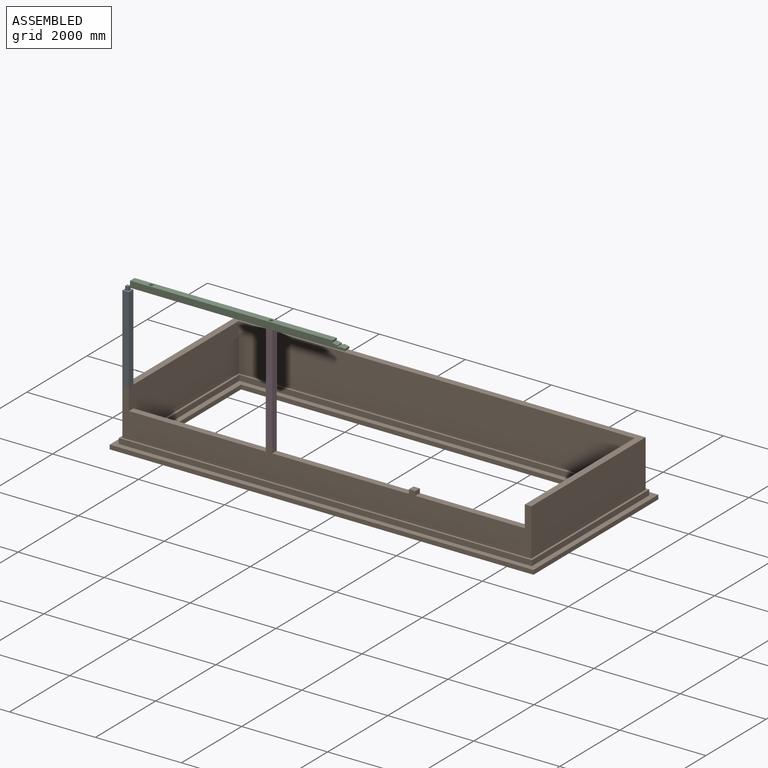
[diagram: assembled view]
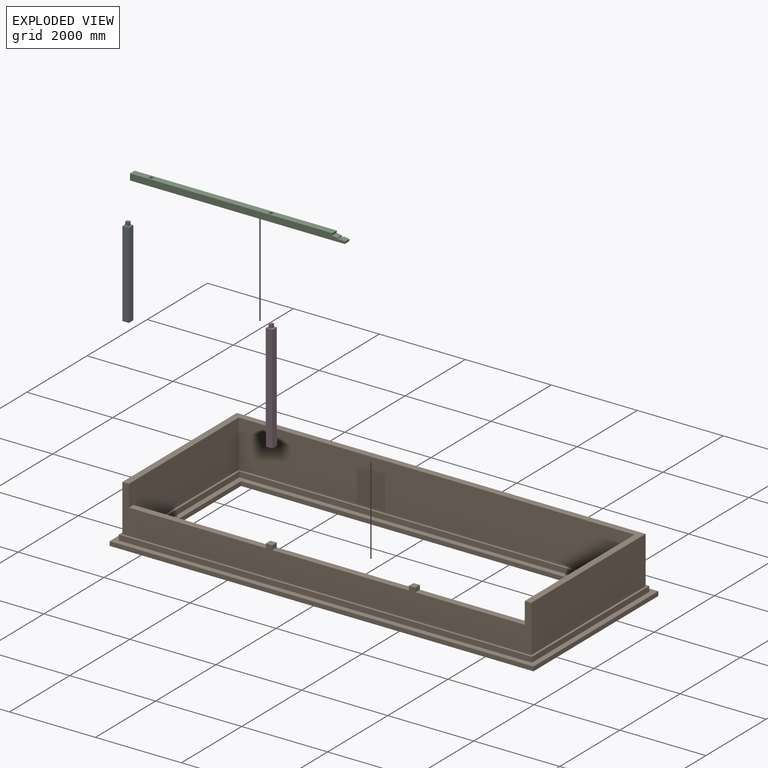
[diagram: exploded view]
GUIDED TOUR — MATED ASSEMBLY (Onshape document bc4bcafc574730fd228ee07c, AutoMate assembly bc4bcafc574730fd228ee07c_49fd6c041df78540ec7fcb2f_7df78c0bd3df533aad97ffa0_default)

This assembly has 4 components, labeled P0..P3 below (a component is one placed occurrence of a part; the same part can appear more than once), held together by 9 mates. A mate is a constraint between two components; its type names the relative motion it leaves free:
  PLANAR — leaves sliding in the plane through the listed point (normal = the listed direction) and rotation about that normal free.
Axis/direction vectors are unit vectors and 'through' points are millimeter coordinates, both in the assembly's world frame.

MATES
  1. PLANAR "Planar 1": P1 <-> P3, direction (0.000, 0.000, 1.000) through (-936.37, 1178.79, 3898.08) mm
  2. PLANAR "Planar 2": P1 <-> P3, direction (0.000, -1.000, 0.000) through (-861.37, 1103.79, 3798.08) mm
  3. PLANAR "Planar 7": P2 <-> P3, direction (0.000, 0.000, -1.000) through (-1661.66, 1178.79, 6398.08) mm
  4. PLANAR "Planar 8": P3 <-> P2, direction (1.000, 0.000, 0.000) through (-898.87, 1178.79, 6443.08) mm
  5. PLANAR "Planar 4": P1 <-> P0, direction (0.000, 0.000, 1.000) through (408.63, 4003.68, 4298.08) mm
  6. PLANAR "Planar 3": P3 <-> P1, direction (1.000, 0.000, 0.000) through (-861.37, 1178.79, 5148.08) mm
  7. PLANAR "Planar 9": P2 <-> P3, direction (0.000, -1.000, 0.000) through (-1746.35, 1103.79, 6472.02) mm
  8. PLANAR "Planar 5": P1 <-> P0, direction (0.000, -1.000, 0.000) through (-2603.87, 1103.79, 3798.08) mm
  9. PLANAR "Planar 6": P1 <-> P0, direction (-1.000, 0.000, 0.000) through (-4346.37, 1103.79, 4298.08) mm

ASSEMBLY ORDER
  1. P3 — the base component [order verified]
  2. P0 [order verified]
  3. P1 [order verified]
  4. P2 [order verified]
Order-tag legend:
  [order verified] — this step's position reverses a verified removal order: the component was checked to insert without passing through the ones already placed.

Of the 4 components, 4 carry the full construction recipe — the FeatureScript program that regenerates the part's solid from scratch; the rest are supplied as boundary geometry only.
Each toured component is shown spotlighted twice — in the assembled view, then in the exploded view, where a leader line traces a displaced component back to its assembled socket (saturated green if recipe-attached, orange if geometry-only; every other component desaturated gray) — followed by its recipe or geometry summary and the mates that hold it.
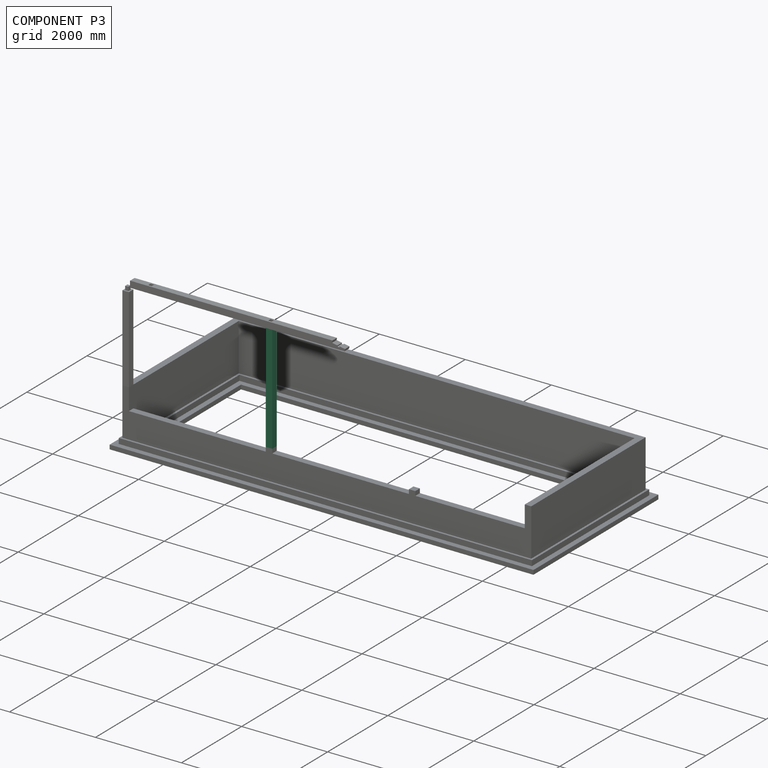
[diagram: component P3 — assembled]
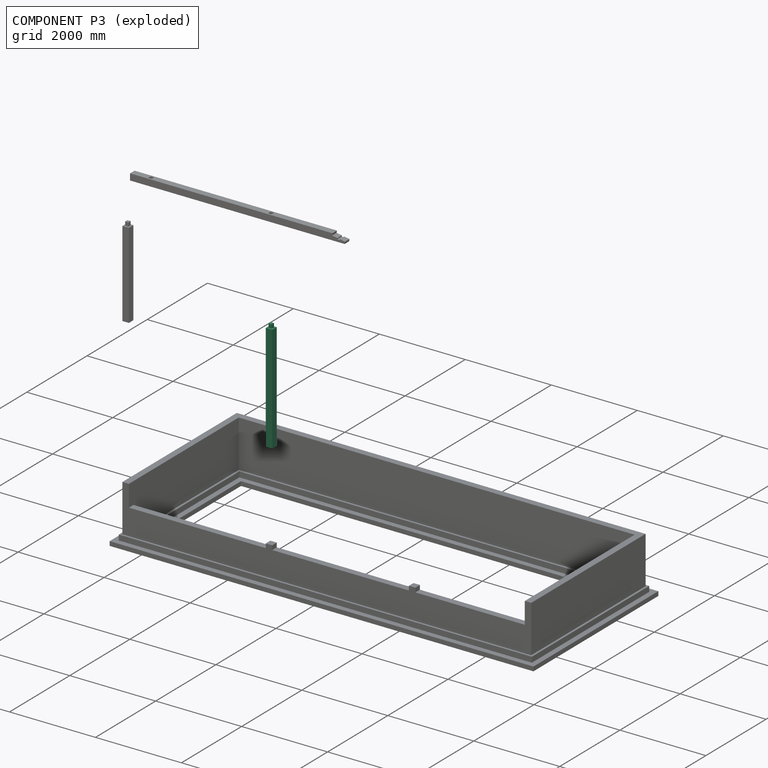
[diagram: component P3 — exploded]
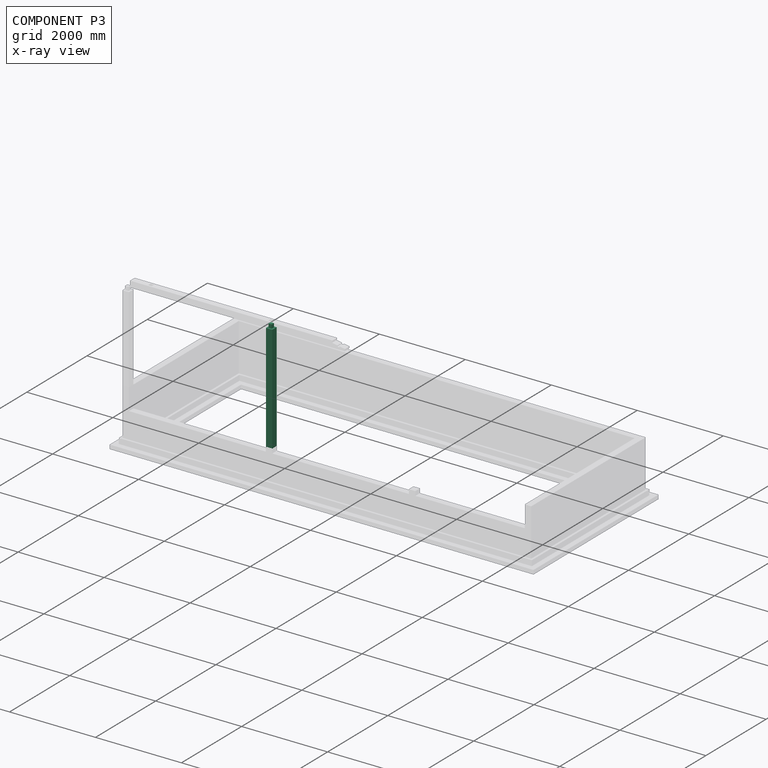
[diagram: component P3 — x-ray view]
COMPONENT P3 — recipe-attached (CADFS 00574488, mesh-verified: the recipe's output STEP matches this component's geometry to below the mesh-comparison resolution (tessellation chordal tolerance ~3.9 mm)).
Held by: PLANAR mate "Planar 1" to P1; PLANAR mate "Planar 2" to P1; PLANAR mate "Planar 7" to P2; PLANAR mate "Planar 8" to P2; PLANAR mate "Planar 3" to P1; PLANAR mate "Planar 9" to P2.
Construction recipe (FeatureScript — the CAD program that rebuilds this solid; sketch coordinates are in the units given by the * unit suffixes, e.g. mm):

FeatureScript 1511;
import(path : "onshape/std/geometry.fs", version : "1511.0");
import(path : "onshape/std/common.fs", version : "1511.0");
const mm = millimeter;
const VERTEX = EntityType.VERTEX;
const EDGE = EntityType.EDGE;
const FACE = EntityType.FACE;
const BODY = EntityType.BODY;
function v(x, y){return vector(x, y);}
function OD(order){return orderDisambiguation(order);}
function OSD(set){return originalSetDisambiguation(set);}
function TD(topology){return topologyDisambiguation(topology);}
function TDD(query){return trueDependencyDisambiguation(query);}
function sQuery(a, b, c) {return sketchEntityQuery(a, b, c);}

annotation { "Feature Type Name" : "Feature", "Feature Type Description" : "" }
export const myFeature = defineFeature(function(context is Context, id is Id, definition is map)
    precondition{}
    {
        {
            var Q0;
            Q0=qCreatedBy(makeId("Top.planeOp"),FACE);
            var sketch = newSketch(context, id + "F0", { "sketchPlane" : qUnion([Q0])});
            skLineSegment(sketch, "E0.bottom", {"start": v(75, 75) * mm, "end": v(-75, 75) * mm});
            skLineSegment(sketch, "E0.top", {"start": v(75, -75) * mm, "end": v(-75, -75) * mm});
            skLineSegment(sketch, "E0.left", {"start": v(75, 75) * mm, "end": v(75, -75) * mm});
            skLineSegment(sketch, "E0.right", {"start": v(-75, 75) * mm, "end": v(-75, -75) * mm});
            skPoint(sketch, "E0.middle", {"position": v(0, 0) * mm});
            skSolve(sketch);
        }
        {
            var Q0;
            Q0=makeQuery(id+"F0.imprint","IMPRINT",FACE,{"disambiguationData":[TD([[makeQuery(id+"F0.imprint","IMPRINT",EDGE,{"derivedFrom":sQuery(id+"F0.wireOp",EDGE,"E0.bottom")}),1.0]])]});
            extrude(context, id + "F1", {"entities" : qUnion([Q0]), "depth" : 2500 * mm, "offsetDistance" : 25 * mm});
        }
        {
            var Q0;
            Q0=makeQuery(id+"F1.opExtrude","CAP_FACE",FACE,{"disambiguationData":[OSD([sQuery(id+"F0.wireOp",EDGE,"E0.bottom"),sQuery(id+"F0.wireOp",EDGE,"E0.top"),sQuery(id+"F0.wireOp",EDGE,"E0.left"),sQuery(id+"F0.wireOp",EDGE,"E0.right")])],"isStart":false});
            var sketch = newSketch(context, id + "F2", { "sketchPlane" : qUnion([Q0])});
            skLineSegment(sketch, "E1.bottom", {"start": v(37.5, 37.5) * mm, "end": v(-37.5, 37.5) * mm});
            skLineSegment(sketch, "E1.top", {"start": v(37.5, -37.5) * mm, "end": v(-37.5, -37.5) * mm});
            skLineSegment(sketch, "E1.left", {"start": v(37.5, 37.5) * mm, "end": v(37.5, -37.5) * mm});
            skLineSegment(sketch, "E1.right", {"start": v(-37.5, 37.5) * mm, "end": v(-37.5, -37.5) * mm});
            skPoint(sketch, "E1.middle", {"position": v(0, 0) * mm});
            skSolve(sketch);
        }
        {
            var Q0;
            Q0=makeQuery(id+"F2.imprint","IMPRINT",FACE,{"disambiguationData":[TD([[makeQuery(id+"F2.imprint","IMPRINT",EDGE,{"derivedFrom":sQuery(id+"F2.wireOp",EDGE,"E1.bottom")}),1.0]])]});
            extrude(context, id + "F3", {"entities" : qUnion([Q0]), "operationType" : NewBodyOperationType.ADD, "depth" : 90 * mm, "offsetDistance" : 25 * mm});
        }
    });
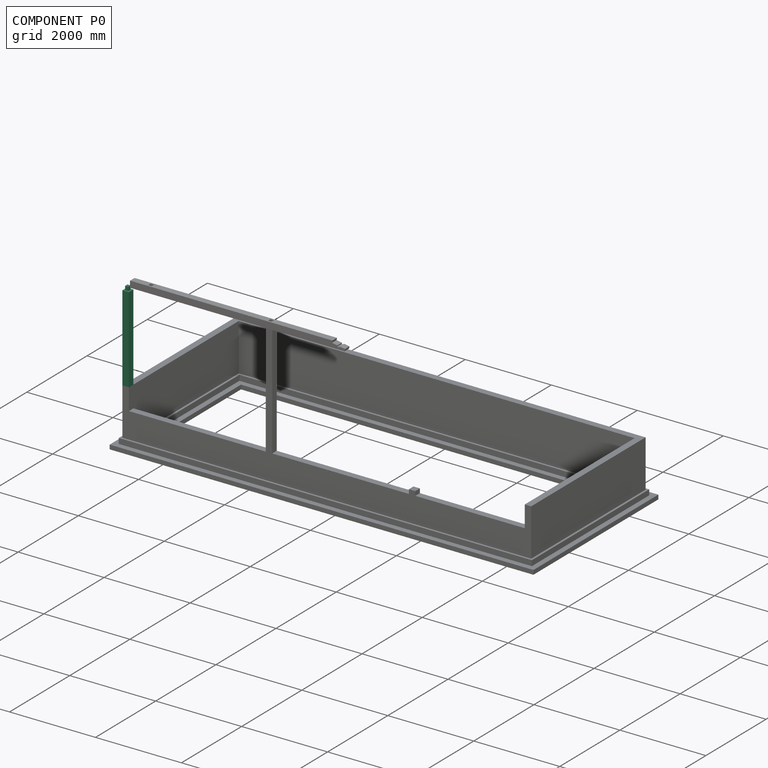
[diagram: component P0 — assembled]
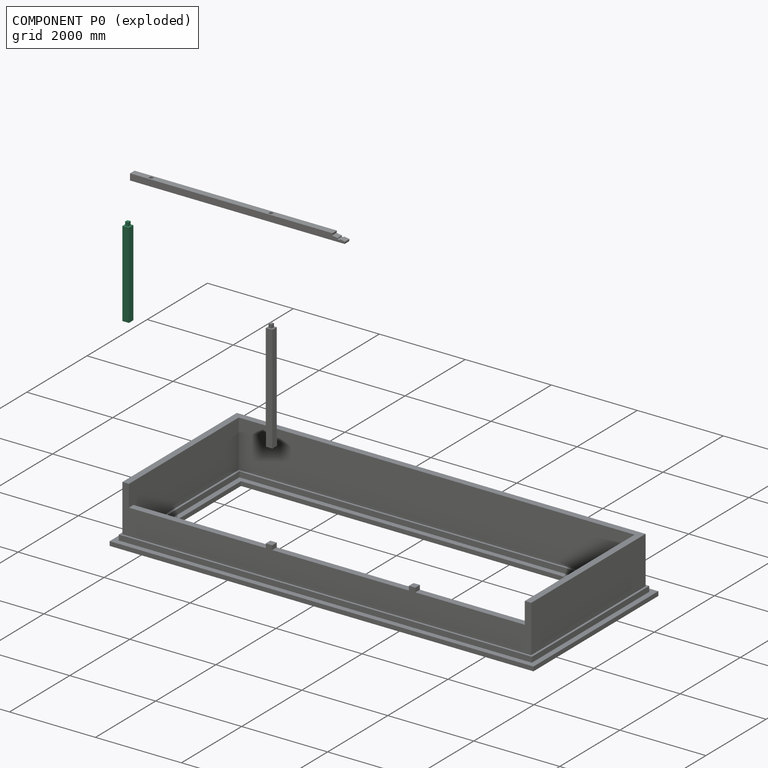
[diagram: component P0 — exploded]
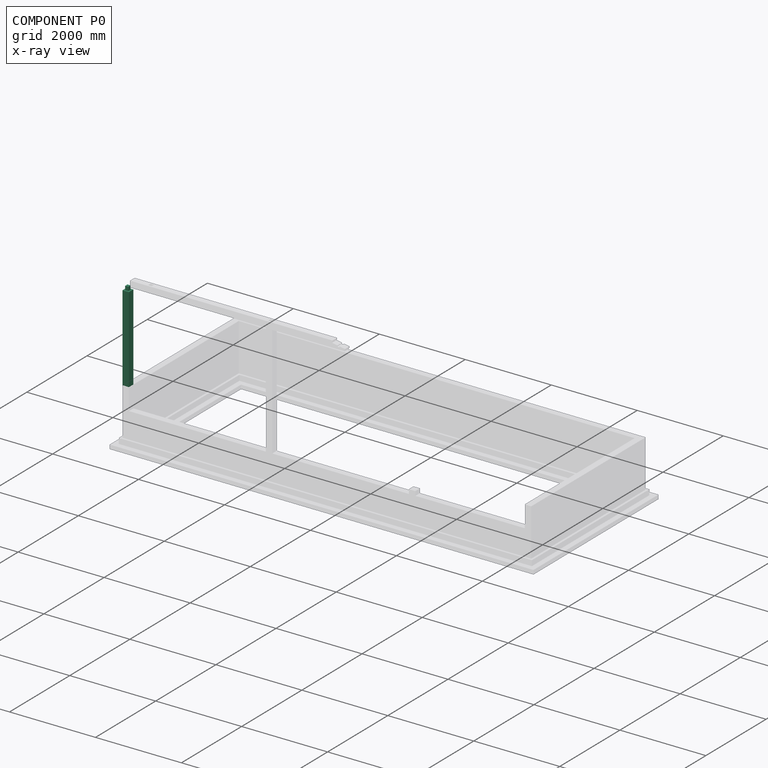
[diagram: component P0 — x-ray view]
COMPONENT P0 — recipe-attached (CADFS 00574489, mesh-verified: the recipe's output STEP matches this component's geometry to below the mesh-comparison resolution (tessellation chordal tolerance ~3.15 mm)).
Held by: PLANAR mate "Planar 4" to P1; PLANAR mate "Planar 5" to P1; PLANAR mate "Planar 6" to P1.
Construction recipe (FeatureScript — the CAD program that rebuilds this solid; sketch coordinates are in the units given by the * unit suffixes, e.g. mm):

FeatureScript 1511;
import(path : "onshape/std/geometry.fs", version : "1511.0");
import(path : "onshape/std/common.fs", version : "1511.0");
const mm = millimeter;
const VERTEX = EntityType.VERTEX;
const EDGE = EntityType.EDGE;
const FACE = EntityType.FACE;
const BODY = EntityType.BODY;
function v(x, y){return vector(x, y);}
function OD(order){return orderDisambiguation(order);}
function OSD(set){return originalSetDisambiguation(set);}
function TD(topology){return topologyDisambiguation(topology);}
function TDD(query){return trueDependencyDisambiguation(query);}
function sQuery(a, b, c) {return sketchEntityQuery(a, b, c);}

annotation { "Feature Type Name" : "Feature", "Feature Type Description" : "" }
export const myFeature = defineFeature(function(context is Context, id is Id, definition is map)
    precondition{}
    {
        {
            var Q0;
            Q0=qCreatedBy(makeId("Top.planeOp"),FACE);
            var sketch = newSketch(context, id + "F0", { "sketchPlane" : qUnion([Q0])});
            skLineSegment(sketch, "E0.bottom", {"start": v(75, 75) * mm, "end": v(-75, 75) * mm});
            skLineSegment(sketch, "E0.top", {"start": v(75, -75) * mm, "end": v(-75, -75) * mm});
            skLineSegment(sketch, "E0.left", {"start": v(75, 75) * mm, "end": v(75, -75) * mm});
            skLineSegment(sketch, "E0.right", {"start": v(-75, 75) * mm, "end": v(-75, -75) * mm});
            skPoint(sketch, "E0.middle", {"position": v(0, 0) * mm});
            skSolve(sketch);
        }
        {
            var Q0;
            Q0=makeQuery(id+"F0.imprint","IMPRINT",FACE,{"disambiguationData":[TD([[makeQuery(id+"F0.imprint","IMPRINT",EDGE,{"derivedFrom":sQuery(id+"F0.wireOp",EDGE,"E0.bottom")}),1.0]])]});
            extrude(context, id + "F1", {"entities" : qUnion([Q0]), "depth" : 2000 * mm, "offsetDistance" : 25 * mm});
        }
        {
            var Q0;
            Q0=makeQuery(id+"F1.opExtrude","CAP_FACE",FACE,{"disambiguationData":[OSD([sQuery(id+"F0.wireOp",EDGE,"E0.bottom"),sQuery(id+"F0.wireOp",EDGE,"E0.top"),sQuery(id+"F0.wireOp",EDGE,"E0.left"),sQuery(id+"F0.wireOp",EDGE,"E0.right")])],"isStart":false});
            var sketch = newSketch(context, id + "F2", { "sketchPlane" : qUnion([Q0])});
            skLineSegment(sketch, "E1.bottom", {"start": v(37.5, 37.5) * mm, "end": v(-37.5, 37.5) * mm});
            skLineSegment(sketch, "E1.top", {"start": v(37.5, -37.5) * mm, "end": v(-37.5, -37.5) * mm});
            skLineSegment(sketch, "E1.left", {"start": v(37.5, 37.5) * mm, "end": v(37.5, -37.5) * mm});
            skLineSegment(sketch, "E1.right", {"start": v(-37.5, 37.5) * mm, "end": v(-37.5, -37.5) * mm});
            skPoint(sketch, "E1.middle", {"position": v(0, 0) * mm});
            skSolve(sketch);
        }
        {
            var Q0;
            Q0=makeQuery(id+"F2.imprint","IMPRINT",FACE,{"disambiguationData":[TD([[makeQuery(id+"F2.imprint","IMPRINT",EDGE,{"derivedFrom":sQuery(id+"F2.wireOp",EDGE,"E1.bottom")}),1.0]])]});
            extrude(context, id + "F3", {"entities" : qUnion([Q0]), "operationType" : NewBodyOperationType.ADD, "depth" : 90 * mm, "offsetDistance" : 25 * mm});
        }
    });
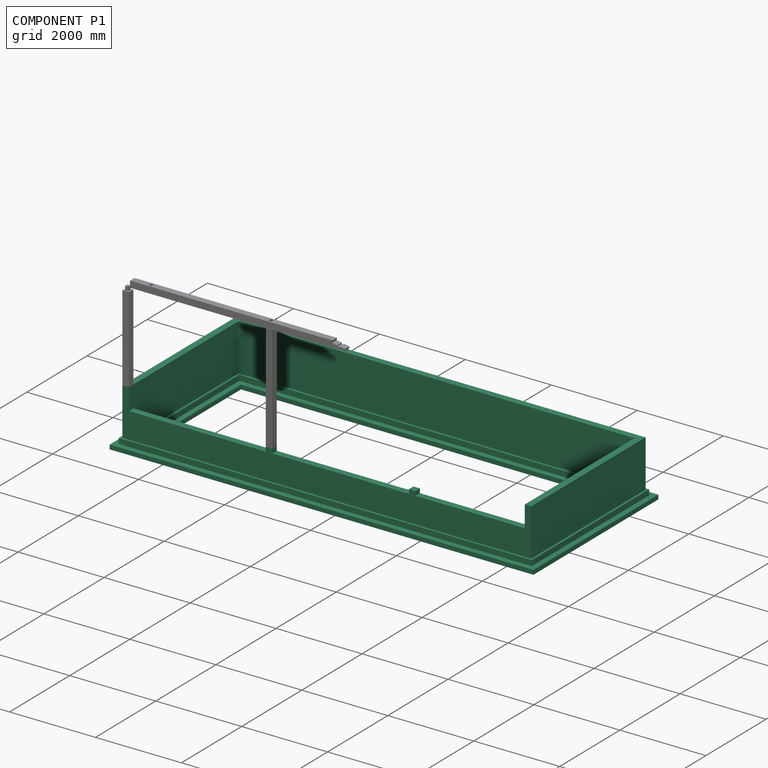
[diagram: component P1 — assembled]
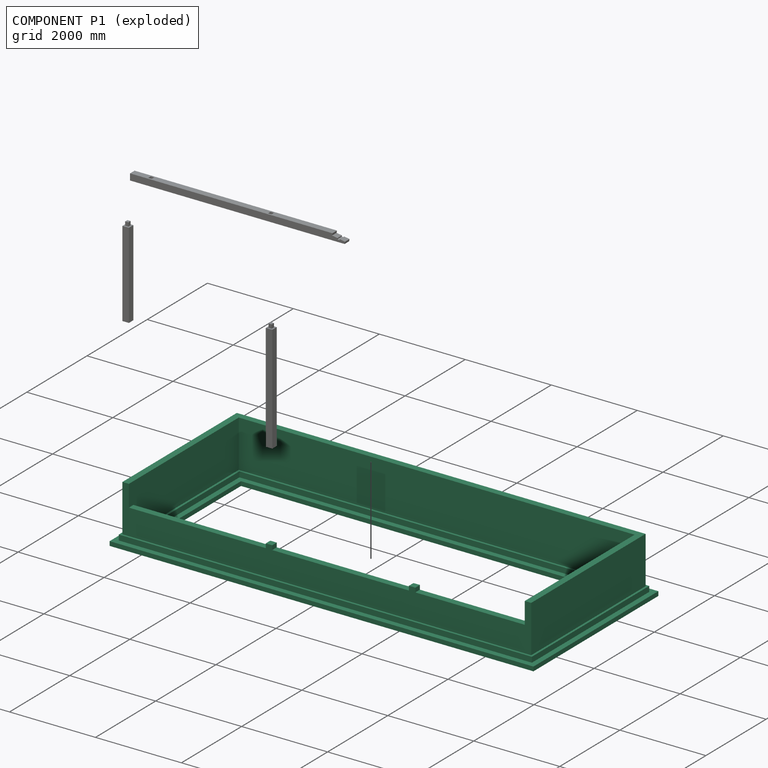
[diagram: component P1 — exploded]
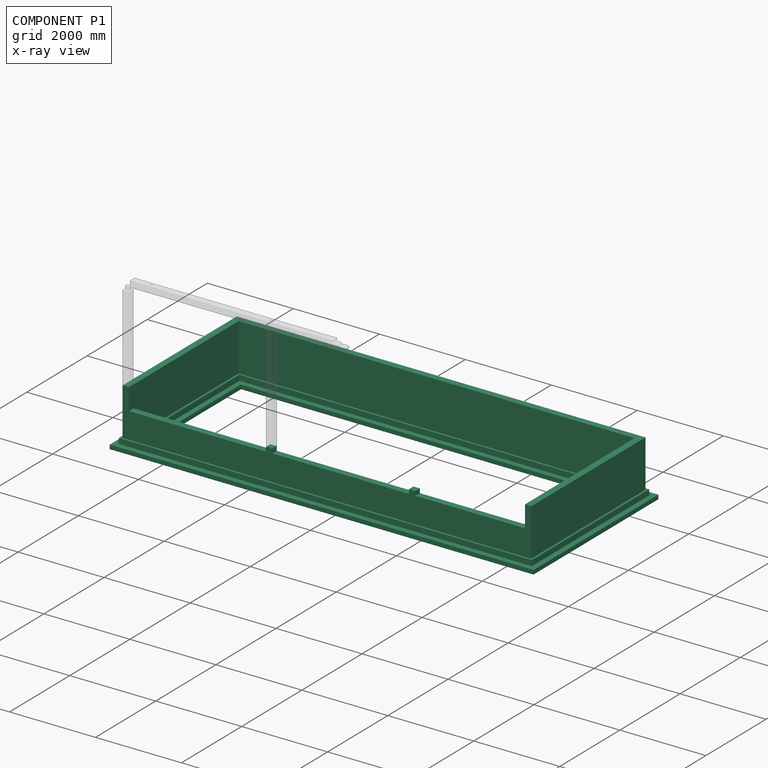
[diagram: component P1 — x-ray view]
COMPONENT P1 — recipe-attached (CADFS 00574487, mesh-verified: the recipe's output STEP matches this component's geometry to below the mesh-comparison resolution (tessellation chordal tolerance ~16.2 mm)).
Held by: PLANAR mate "Planar 1" to P3; PLANAR mate "Planar 2" to P3; PLANAR mate "Planar 4" to P0; PLANAR mate "Planar 3" to P3; PLANAR mate "Planar 5" to P0; PLANAR mate "Planar 6" to P0.
Construction recipe (FeatureScript — the CAD program that rebuilds this solid; sketch coordinates are in the units given by the * unit suffixes, e.g. mm):

FeatureScript 1511;
import(path : "onshape/std/geometry.fs", version : "1511.0");
import(path : "onshape/std/common.fs", version : "1511.0");
const mm = millimeter;
const VERTEX = EntityType.VERTEX;
const EDGE = EntityType.EDGE;
const FACE = EntityType.FACE;
const BODY = EntityType.BODY;
function v(x, y){return vector(x, y);}
function OD(order){return orderDisambiguation(order);}
function OSD(set){return originalSetDisambiguation(set);}
function TD(topology){return topologyDisambiguation(topology);}
function TDD(query){return trueDependencyDisambiguation(query);}
function sQuery(a, b, c) {return sketchEntityQuery(a, b, c);}

annotation { "Feature Type Name" : "Feature", "Feature Type Description" : "" }
export const myFeature = defineFeature(function(context is Context, id is Id, definition is map)
    precondition{}
    {
        {
            var Q0;
            Q0=qCreatedBy(makeId("Top.planeOp"),FACE);
            var sketch = newSketch(context, id + "F0", { "sketchPlane" : qUnion([Q0])});
            skLineSegment(sketch, "E0", {"start": v(-2720, 0) * mm, "end": v(-3220, 0) * mm});
            skLineSegment(sketch, "E1", {"start": v(-3220, 0) * mm, "end": v(-3220, 4150) * mm});
            skLineSegment(sketch, "E2", {"start": v(-3220, 4150) * mm, "end": v(6640, 4150) * mm});
            skLineSegment(sketch, "E3", {"start": v(6640, 4150) * mm, "end": v(6640, 0) * mm});
            skLineSegment(sketch, "E4", {"start": v(6640, 0) * mm, "end": v(6140, 0) * mm});
            skLineSegment(sketch, "E5", {"start": v(6140, 500) * mm, "end": v(6140, 3650) * mm});
            skLineSegment(sketch, "E6", {"start": v(6140, 3650) * mm, "end": v(-2720, 3650) * mm});
            skLineSegment(sketch, "E7", {"start": v(-2720, 3650) * mm, "end": v(-2720, 500) * mm});
            skLineSegment(sketch, "E8", {"start": v(-2720, 0) * mm, "end": v(6140, 0) * mm});
            skLineSegment(sketch, "E9", {"start": v(-2970, 0) * mm, "end": v(-2970, 3900) * mm, "construction": true});
            skLineSegment(sketch, "E10", {"start": v(-2970, 3900) * mm, "end": v(6390, 3900) * mm, "construction": true});
            skLineSegment(sketch, "E11", {"start": v(6390, 0) * mm, "end": v(6390, 3900) * mm, "construction": true});
            skLineSegment(sketch, "E12", {"start": v(-2720, 500) * mm, "end": v(6140, 500) * mm});
            skLineSegment(sketch, "E13", {"start": v(-2970, 250) * mm, "end": v(6390, 250) * mm, "construction": true});
            skSolve(sketch);
        }
        {
            var Q0;
            Q0=makeQuery(id+"F0.imprint","IMPRINT",FACE,{"disambiguationData":[TD([[makeQuery(id+"F0.imprint","IMPRINT",EDGE,{"derivedFrom":sQuery(id+"F0.wireOp",EDGE,"E0")}),-1.0]])]});
            extrude(context, id + "F1", {"entities" : qUnion([Q0]), "depth" : 100 * mm, "offsetDistance" : 25 * mm});
        }
        {
            var Q0;
            Q0=makeQuery(id+"F1.opExtrude","CAP_FACE",FACE,{"disambiguationData":[OSD([sQuery(id+"F0.wireOp",EDGE,"E0"),sQuery(id+"F0.wireOp",EDGE,"E1"),sQuery(id+"F0.wireOp",EDGE,"E2"),sQuery(id+"F0.wireOp",EDGE,"E3"),sQuery(id+"F0.wireOp",EDGE,"E4"),sQuery(id+"F0.wireOp",EDGE,"E5"),sQuery(id+"F0.wireOp",EDGE,"E6"),sQuery(id+"F0.wireOp",EDGE,"E7")])],"isStart":false});
            var sketch = newSketch(context, id + "F2", { "sketchPlane" : qUnion([Q0])});
            skLineSegment(sketch, "E14", {"start": v(-3095, 125) * mm, "end": v(-3095, 4025) * mm});
            skLineSegment(sketch, "E15", {"start": v(-3095, 4025) * mm, "end": v(6515, 4025) * mm});
            skLineSegment(sketch, "E16", {"start": v(6515, 4025) * mm, "end": v(6515, 125) * mm});
            skLineSegment(sketch, "E17", {"start": v(6265, 375) * mm, "end": v(6265, 3775) * mm});
            skLineSegment(sketch, "E18", {"start": v(6265, 3775) * mm, "end": v(-2845, 3775) * mm});
            skLineSegment(sketch, "E19", {"start": v(-2845, 3775) * mm, "end": v(-2845, 375) * mm});
            skLineSegment(sketch, "E20", {"start": v(-2845, 375) * mm, "end": v(6265, 375) * mm});
            skLineSegment(sketch, "E21", {"start": v(-3095, 125) * mm, "end": v(6515, 125) * mm});
            skPoint(sketch, "E22.orphan", {"position": v(-2845, 0) * mm});
            skPoint(sketch, "E23.orphan", {"position": v(6515, 0) * mm});
            skSolve(sketch);
        }
        {
            var Q0;
            Q0=makeQuery(id+"F2.imprint","IMPRINT",FACE,{"disambiguationData":[TD([[makeQuery(id+"F2.imprint","IMPRINT",EDGE,{"derivedFrom":sQuery(id+"F2.wireOp",EDGE,"E14")}),-1.0]])]});
            extrude(context, id + "F3", {"entities" : qUnion([Q0]), "operationType" : NewBodyOperationType.ADD, "depth" : 100 * mm, "offsetDistance" : 25 * mm});
        }
        {
            var Q0;
            Q0=makeQuery(id+"F3.opExtrude","CAP_FACE",FACE,{"disambiguationData":[OSD([sQuery(id+"F2.wireOp",EDGE,"E14"),sQuery(id+"F2.wireOp",EDGE,"E15"),sQuery(id+"F2.wireOp",EDGE,"E16"),sQuery(id+"F2.wireOp",EDGE,"NphoCxTZ-fXz7-NrUu-ey8z-QnH2uSn7Xx2u"),sQuery(id+"F2.wireOp",EDGE,"E17"),sQuery(id+"F2.wireOp",EDGE,"E18"),sQuery(id+"F2.wireOp",EDGE,"E19"),sQuery(id+"F2.wireOp",EDGE,"ZqT3Uk6X-4e9T-K1ZI-z1TJ-C3bCra6QGol4")])],"isStart":false});
            extrude(context, id + "F4", {"entities" : qUnion([Q0]), "operationType" : NewBodyOperationType.ADD, "depth" : 25 * mm, "offsetDistance" : 25 * mm});
        }
        {
            var Q0;
            Q0=makeQuery(id+"F4.opExtrude","CAP_FACE",FACE,{"disambiguationData":[OSD([sQuery(id+"F2.wireOp",EDGE,"E14"),sQuery(id+"F2.wireOp",EDGE,"E15"),sQuery(id+"F2.wireOp",EDGE,"E16"),sQuery(id+"F2.wireOp",EDGE,"NphoCxTZ-fXz7-NrUu-ey8z-QnH2uSn7Xx2u"),sQuery(id+"F2.wireOp",EDGE,"E17"),sQuery(id+"F2.wireOp",EDGE,"E18"),sQuery(id+"F2.wireOp",EDGE,"E19"),sQuery(id+"F2.wireOp",EDGE,"ZqT3Uk6X-4e9T-K1ZI-z1TJ-C3bCra6QGol4")])],"isStart":false});
            var sketch = newSketch(context, id + "F5", { "sketchPlane" : qUnion([Q0])});
            skLineSegment(sketch, "E24", {"start": v(-3045, 175) * mm, "end": v(-3045, 3975) * mm});
            skLineSegment(sketch, "E25", {"start": v(-3045, 3975) * mm, "end": v(6465, 3975) * mm});
            skLineSegment(sketch, "E26", {"start": v(6465, 3975) * mm, "end": v(6465, 175) * mm});
            skLineSegment(sketch, "E27", {"start": v(6465, 175) * mm, "end": v(6315, 175) * mm});
            skLineSegment(sketch, "E28", {"start": v(6315, 175) * mm, "end": v(6315, 3825) * mm});
            skLineSegment(sketch, "E29", {"start": v(6315, 3825) * mm, "end": v(-2895, 3825) * mm});
            skLineSegment(sketch, "E30", {"start": v(-2895, 3825) * mm, "end": v(-2895, 175) * mm});
            skLineSegment(sketch, "E31", {"start": v(-2895, 175) * mm, "end": v(-3045, 175) * mm});
            skPoint(sketch, "E32.orphan", {"position": v(-2895, 125) * mm});
            skPoint(sketch, "E33.orphan", {"position": v(6465, 125) * mm});
            skSolve(sketch);
        }
        {
            var Q0;
            {var subQ3=sQuery(id+"F5.wireOp",EDGE,"E27");Q0=makeQuery(id+"F5.imprint","IMPRINT",FACE,{"disambiguationData":[TD([[makeQuery(id+"F5.imprint","IMPRINT",EDGE,{"derivedFrom":subQ3}),-1.0]])]});}
            extrude(context, id + "F6", {"entities" : qUnion([Q0]), "operationType" : NewBodyOperationType.ADD, "depth" : 1100 * mm, "offsetDistance" : 25 * mm});
        }
        {
            var Q0;
            Q0=makeQuery(id+"F4.opExtrude","CAP_FACE",FACE,{"disambiguationData":[OSD([sQuery(id+"F2.wireOp",EDGE,"E14"),sQuery(id+"F2.wireOp",EDGE,"E15"),sQuery(id+"F2.wireOp",EDGE,"E16"),sQuery(id+"F2.wireOp",EDGE,"E17"),sQuery(id+"F2.wireOp",EDGE,"E18"),sQuery(id+"F2.wireOp",EDGE,"E19"),sQuery(id+"F2.wireOp",EDGE,"E20"),sQuery(id+"F2.wireOp",EDGE,"E21")])],"isStart":false});
            var sketch = newSketch(context, id + "F7", { "sketchPlane" : qUnion([Q0])});
            skLineSegment(sketch, "E34.bottom", {"start": v(-2895, 175) * mm, "end": v(6315, 175) * mm});
            skLineSegment(sketch, "E34.top", {"start": v(-2895, 325) * mm, "end": v(6315, 325) * mm});
            skLineSegment(sketch, "E34.left", {"start": v(-2895, 175) * mm, "end": v(-2895, 325) * mm});
            skLineSegment(sketch, "E34.right", {"start": v(6315, 175) * mm, "end": v(6315, 325) * mm});
            skSolve(sketch);
        }
        {
            var Q0;
            Q0 = qSketchRegion(id + "F7", true);
            extrude(context, id + "F8", {"entities" : qUnion([Q0]), "operationType" : NewBodyOperationType.ADD, "depth" : 600 * mm, "offsetDistance" : 25 * mm});
        }
        {
            var Q0;
            Q0=makeQuery(id+"F8.opExtrude","CAP_FACE",FACE,{"disambiguationData":[OSD([sQuery(id+"F7.wireOp",EDGE,"E34.bottom"),sQuery(id+"F7.wireOp",EDGE,"E34.top"),sQuery(id+"F7.wireOp",EDGE,"E34.left"),sQuery(id+"F7.wireOp",EDGE,"E34.right")])],"isStart":false});
            var sketch = newSketch(context, id + "F9", { "sketchPlane" : qUnion([Q0])});
            skLineSegment(sketch, "E35.bottom", {"start": v(290, 325) * mm, "end": v(440, 325) * mm});
            skLineSegment(sketch, "E35.top", {"start": v(290, 175) * mm, "end": v(440, 175) * mm});
            skLineSegment(sketch, "E35.left", {"start": v(290, 325) * mm, "end": v(290, 175) * mm});
            skLineSegment(sketch, "E35.right", {"start": v(440, 325) * mm, "end": v(440, 175) * mm});
            skLineSegment(sketch, "E36.bottom", {"start": v(3620, 325) * mm, "end": v(3770, 325) * mm});
            skLineSegment(sketch, "E36.top", {"start": v(3620, 175) * mm, "end": v(3770, 175) * mm});
            skLineSegment(sketch, "E36.left", {"start": v(3620, 325) * mm, "end": v(3620, 175) * mm});
            skLineSegment(sketch, "E36.right", {"start": v(3770, 325) * mm, "end": v(3770, 175) * mm});
            skSolve(sketch);
        }
        {
            var Q0;
            Q0 = qSketchRegion(id + "F9", true);
            extrude(context, id + "F10", {"entities" : qUnion([Q0]), "operationType" : NewBodyOperationType.ADD, "depth" : 100 * mm, "offsetDistance" : 25 * mm});
        }
    });
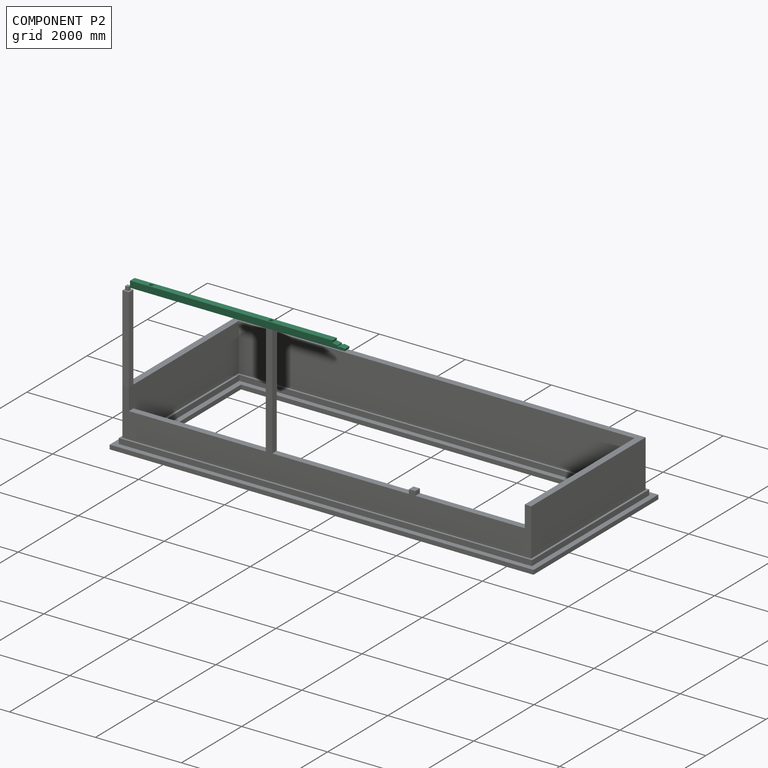
[diagram: component P2 — assembled]
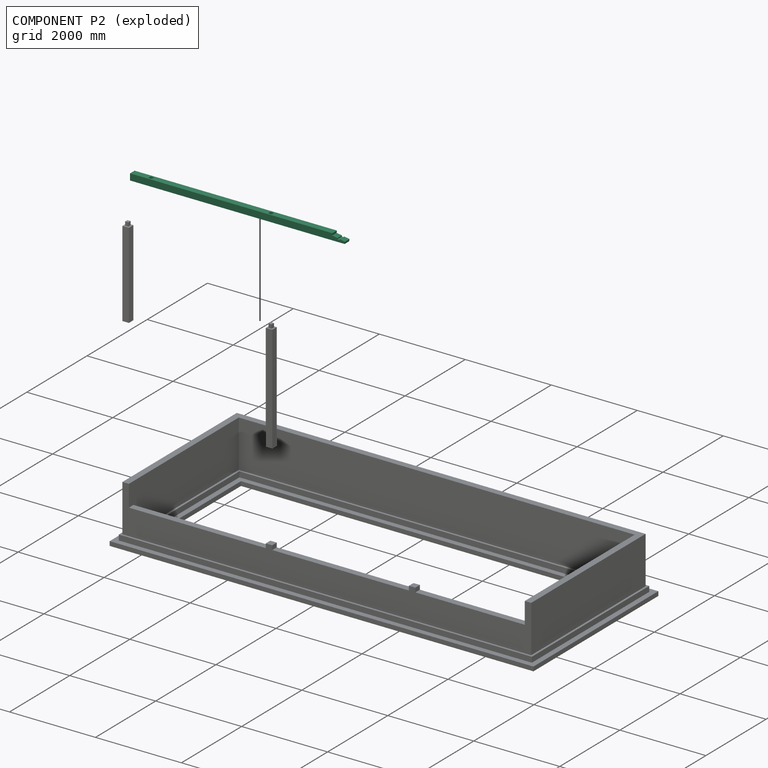
[diagram: component P2 — exploded]
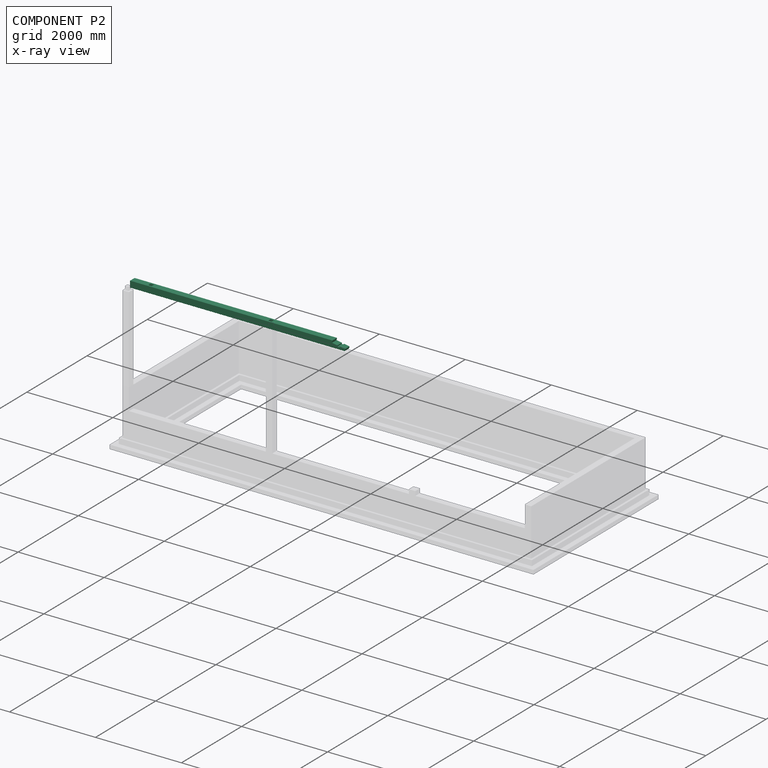
[diagram: component P2 — x-ray view]
COMPONENT P2 — recipe-attached (CADFS 00574490, mesh-verified: the recipe's output STEP matches this component's geometry to below the mesh-comparison resolution (tessellation chordal tolerance ~7.51 mm)).
Held by: PLANAR mate "Planar 7" to P3; PLANAR mate "Planar 8" to P3; PLANAR mate "Planar 9" to P3.
Construction recipe (FeatureScript — the CAD program that rebuilds this solid; sketch coordinates are in the units given by the * unit suffixes, e.g. mm):

FeatureScript 1511;
import(path : "onshape/std/geometry.fs", version : "1511.0");
import(path : "onshape/std/common.fs", version : "1511.0");
const mm = millimeter;
const VERTEX = EntityType.VERTEX;
const EDGE = EntityType.EDGE;
const FACE = EntityType.FACE;
const BODY = EntityType.BODY;
function v(x, y){return vector(x, y);}
function OD(order){return orderDisambiguation(order);}
function OSD(set){return originalSetDisambiguation(set);}
function TD(topology){return topologyDisambiguation(topology);}
function TDD(query){return trueDependencyDisambiguation(query);}
function sQuery(a, b, c) {return sketchEntityQuery(a, b, c);}

annotation { "Feature Type Name" : "Feature", "Feature Type Description" : "" }
export const myFeature = defineFeature(function(context is Context, id is Id, definition is map)
    precondition{}
    {
        {
            var Q0;
            Q0=qCreatedBy(makeId("Right.planeOp"),FACE);
            var sketch = newSketch(context, id + "F0", { "sketchPlane" : qUnion([Q0])});
            skLineSegment(sketch, "E0.bottom", {"start": v(75, 75) * mm, "end": v(-75, 75) * mm});
            skLineSegment(sketch, "E0.top", {"start": v(75, -75) * mm, "end": v(-75, -75) * mm});
            skLineSegment(sketch, "E0.left", {"start": v(75, 75) * mm, "end": v(75, -75) * mm});
            skLineSegment(sketch, "E0.right", {"start": v(-75, 75) * mm, "end": v(-75, -75) * mm});
            skPoint(sketch, "E0.middle", {"position": v(0, 0) * mm});
            skSolve(sketch);
        }
        {
            var Q0;
            Q0=makeQuery(id+"F0.imprint","IMPRINT",FACE,{"disambiguationData":[TD([[makeQuery(id+"F0.imprint","IMPRINT",EDGE,{"derivedFrom":sQuery(id+"F0.wireOp",EDGE,"E0.bottom")}),1.0]])]});
            extrude(context, id + "F1", {"entities" : qUnion([Q0]), "depth" : 5000 * mm, "offsetDistance" : 25 * mm});
        }
        {
            var Q0;
            Q0=makeQuery(id+"F1.opExtrude","SWEPT_FACE",FACE,{"disambiguationData":[OSD([sQuery(id+"F0.wireOp",EDGE,"E0.right")])]});
            var sketch = newSketch(context, id + "F2", { "sketchPlane" : qUnion([Q0])});
            skLineSegment(sketch, "E1", {"start": v(4708.56, 75) * mm, "end": v(4700, 26.45) * mm});
            skLineSegment(sketch, "E2", {"start": v(4700, 26.45) * mm, "end": v(5000, -26.45) * mm});
            skLineSegment(sketch, "E3", {"start": v(5000, -26.45) * mm, "end": v(4991.44, -75) * mm});
            skLineSegment(sketch, "E4", {"start": v(4708.56, 75) * mm, "end": v(5050, 75) * mm});
            skLineSegment(sketch, "E5", {"start": v(5050, 75) * mm, "end": v(5050, -75) * mm});
            skLineSegment(sketch, "E6", {"start": v(5050, -75) * mm, "end": v(4991.44, -75) * mm});
            skLineSegment(sketch, "E7", {"start": v(4850, 0) * mm, "end": v(4845.66, -24.62) * mm, "construction": true});
            skLineSegment(sketch, "E8", {"start": v(4825.38, 4.34) * mm, "end": v(4821.04, -20.28) * mm});
            skLineSegment(sketch, "E9", {"start": v(4821.04, -20.28) * mm, "end": v(4870.28, -28.96) * mm});
            skLineSegment(sketch, "E10", {"start": v(4870.28, -28.96) * mm, "end": v(4874.62, -4.34) * mm});
            skSolve(sketch);
        }
        {
            var Q0;
            {var subQ0=sQuery(id+"F2.wireOp",EDGE,"E3");Q0=makeQuery(id+"F2.imprint","IMPRINT",FACE,{"disambiguationData":[TD([[makeQuery(id+"F2.imprint","IMPRINT",EDGE,{"derivedFrom":subQ0}),1.0]])]});}
            var Q1;
            {var subQ6=sQuery(id+"F2.wireOp",EDGE,"E5");Q1=makeQuery(id+"F2.imprint","IMPRINT",FACE,{"disambiguationData":[TD([[makeQuery(id+"F2.imprint","IMPRINT",EDGE,{"derivedFrom":subQ6}),-1.0]])]});}
            var Q2;
            {var subQ0=sQuery(id+"F2.wireOp",EDGE,"E8");Q2=makeQuery(id+"F2.imprint","IMPRINT",FACE,{"disambiguationData":[TD([[makeQuery(id+"F2.imprint","IMPRINT",EDGE,{"derivedFrom":subQ0}),1.0]])]});}
            var Q3;
            {var subQ6=sQuery(id+"F2.wireOp",EDGE,"E1");Q3=makeQuery(id+"F2.imprint","IMPRINT",FACE,{"disambiguationData":[TD([[makeQuery(id+"F2.imprint","IMPRINT",EDGE,{"derivedFrom":subQ6}),1.0]])]});}
            extrude(context, id + "F3", {"entities" : qUnion([Q0, Q1, Q2, Q3]), "operationType" : NewBodyOperationType.REMOVE, "endBound" : BoundingType.THROUGH_ALL, "oppositeDirection" : true, "depth" : 25 * mm, "offsetDistance" : 25 * mm});
        }
        {
            var Q0;
            Q0=makeQuery(id+"F1.opExtrude","SWEPT_FACE",FACE,{"disambiguationData":[OSD([sQuery(id+"F0.wireOp",EDGE,"E0.bottom")])]});
            var sketch = newSketch(context, id + "F4", { "sketchPlane" : qUnion([Q0])});
            skLineSegment(sketch, "E11.bottom", {"start": v(3190, 40) * mm, "end": v(3270, 40) * mm});
            skLineSegment(sketch, "E11.top", {"start": v(3190, -40) * mm, "end": v(3270, -40) * mm});
            skLineSegment(sketch, "E11.left", {"start": v(3190, 40) * mm, "end": v(3190, -40) * mm});
            skLineSegment(sketch, "E11.right", {"start": v(3270, 40) * mm, "end": v(3270, -40) * mm});
            skPoint(sketch, "E11.middle", {"position": v(3230, 0) * mm});
            skLineSegment(sketch, "E12.bottom", {"start": v(480, 40) * mm, "end": v(400, 40) * mm});
            skLineSegment(sketch, "E12.top", {"start": v(480, -40) * mm, "end": v(400, -40) * mm});
            skLineSegment(sketch, "E12.left", {"start": v(480, 40) * mm, "end": v(480, -40) * mm});
            skLineSegment(sketch, "E12.right", {"start": v(400, 40) * mm, "end": v(400, -40) * mm});
            skPoint(sketch, "E12.middle", {"position": v(440, 0) * mm});
            skSolve(sketch);
        }
        {
            var Q0;
            Q0=makeQuery(id+"F4.imprint","IMPRINT",FACE,{"disambiguationData":[TD([[makeQuery(id+"F4.imprint","IMPRINT",EDGE,{"derivedFrom":sQuery(id+"F4.wireOp",EDGE,"E12.bottom")}),1.0]])]});
            var Q1;
            Q1=makeQuery(id+"F4.imprint","IMPRINT",FACE,{"disambiguationData":[TD([[makeQuery(id+"F4.imprint","IMPRINT",EDGE,{"derivedFrom":sQuery(id+"F4.wireOp",EDGE,"E11.bottom")}),-1.0]])]});
            extrude(context, id + "F5", {"entities" : qUnion([Q0, Q1]), "operationType" : NewBodyOperationType.REMOVE, "endBound" : BoundingType.UP_TO_NEXT, "oppositeDirection" : true, "depth" : 25 * mm, "offsetDistance" : 25 * mm});
        }
    });
PROVENANCE & LICENSES
Assembly (occurrences, transforms, mates, per-part STEP geometry): AutoMate dataset, Zenodo record 7776208, CC0.
Construction recipes: CADFS (HuggingFace VladPyatov/CADFS, CC-BY-4.0, layered over the ABC dataset), FeatureScript reconstruction programs keyed by ABC model id.
Join: ABC meta listings map ABC model id -> Onshape documentId; within a shared document, parts are matched by geometric signature (bounding-box dims + volume at 0.1% relative tolerance, exact B-rep face/solid counts).
Verification: 4 of this assembly's 4 components carry a recipe attachment, and every attachment is mesh-verified: the CADFS STEP and the AutoMate member STEP were compared as meshes in their shared local frame (symmetric sampled-point-to-mesh distance); worst across the 4 attachments: below the mesh-comparison resolution (tessellation chordal tolerance ~16.2 mm) on a 10780 mm part.
Renders: orthographic iso camera (az 35 / el 25); the floor grid conveys scale (grid pitch printed in each image; no ruler). In the exploded view each component is displaced by its stored offset vector: the offsets alone carry the explosion direction (mate normal/axis signs are not orientation cues and do not encode it), and separation distances are assigned per mate-chain, not proportionally to assembly-order depth.
